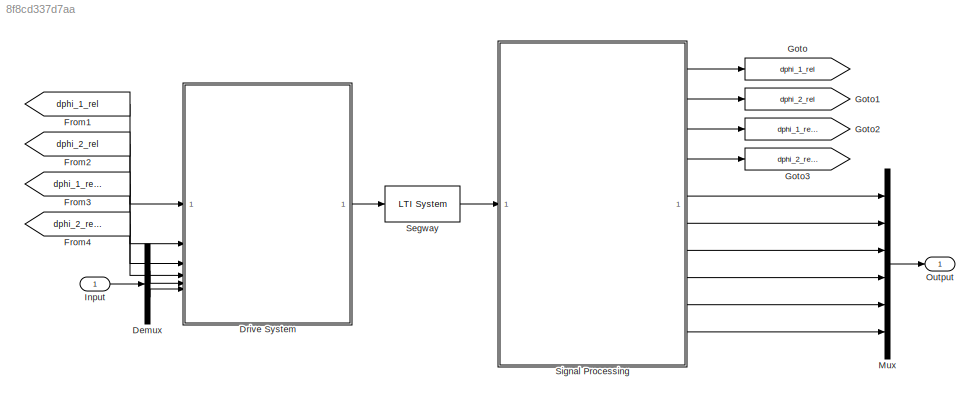
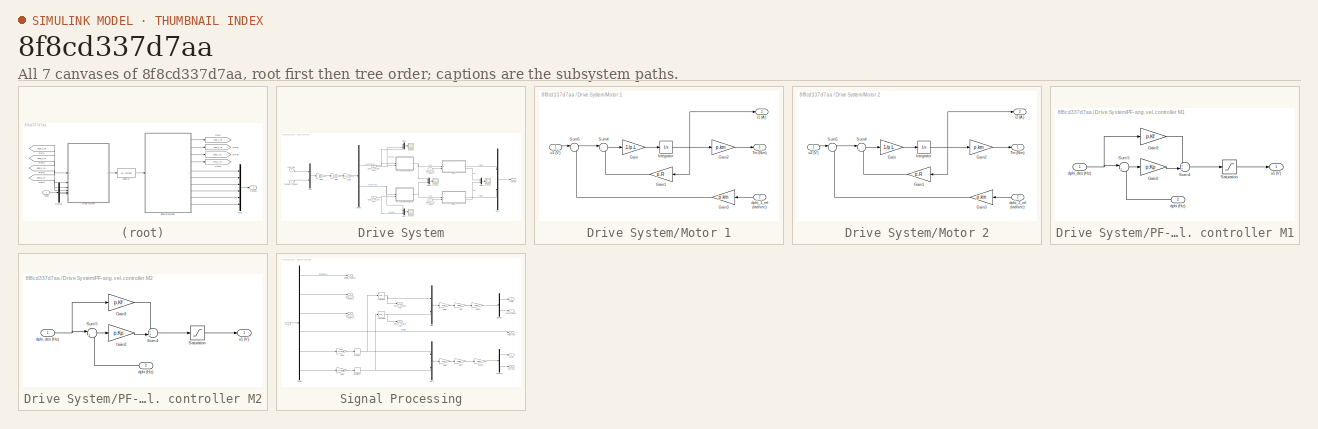
[diagram: thumbnail index - all 7 canvases of the model, root first then tree order]
MODEL slx_8f8cd337d7aa
KIND model
CONFIG AbsTol = auto
CONFIG EnableMultiTasking = off
CONFIG FixedStep = auto
CONFIG MaxStep = auto
CONFIG MinStep = auto
CONFIG RelTol = 1e-3
CONFIG SampleTimeConstraint = Unconstrained
CONFIG SolverName = VariableStepAuto
CONFIG StartTime = 0.0
CONFIG StopTime = 10.0
BLOCK [Demux] Demux
  Outputs = 2
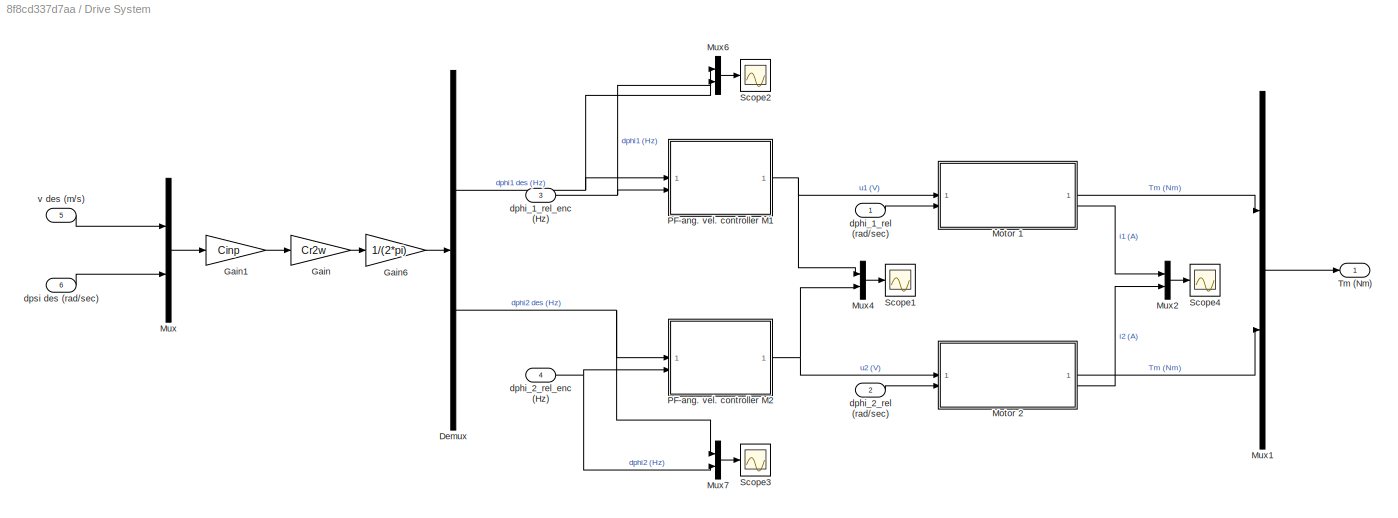
BLOCK [SubSystem] Drive System
BLOCK [Demux] Drive System/Demux
  Outputs = 2
BLOCK [Gain] Drive System/Gain
  Gain = Cr2w
  Multiplication = Matrix(K*u)
BLOCK [Gain] Drive System/Gain1
  Gain = Cinp
  Multiplication = Matrix(K*u)
BLOCK [Gain] Drive System/Gain6
  Gain = 1/(2*pi)
BLOCK [SubSystem] Drive System/Motor 1
BLOCK [Gain] Drive System/Motor 1/Gain
  Gain = 1/p.L
BLOCK [Gain] Drive System/Motor 1/Gain1
  Gain = p.R
  NameLocation = top
BLOCK [Gain] Drive System/Motor 1/Gain2
  Gain = p.km
BLOCK [Gain] Drive System/Motor 1/Gain3
  Gain = p.km
  NameLocation = top
BLOCK [Integrator] Drive System/Motor 1/Integrator
BLOCK [Sum] Drive System/Motor 1/Sum4
  Inputs = |+-
BLOCK [Sum] Drive System/Motor 1/Sum5
  Inputs = |+-
BLOCK [Outport] Drive System/Motor 1/Tm (Nm)
BLOCK [Inport] Drive System/Motor 1/dphi_1_rel (rad//sec)
  Port = 2
BLOCK [Outport] Drive System/Motor 1/i1 (A)
  Port = 2
BLOCK [Inport] Drive System/Motor 1/u1 (V)
BLOCK [SubSystem] Drive System/Motor 2
BLOCK [Gain] Drive System/Motor 2/Gain
  Gain = 1/p.L
BLOCK [Gain] Drive System/Motor 2/Gain1
  Gain = p.R
  NameLocation = top
BLOCK [Gain] Drive System/Motor 2/Gain2
  Gain = p.km
BLOCK [Gain] Drive System/Motor 2/Gain3
  Gain = p.km
  NameLocation = top
BLOCK [Integrator] Drive System/Motor 2/Integrator
BLOCK [Sum] Drive System/Motor 2/Sum4
  Inputs = |+-
BLOCK [Sum] Drive System/Motor 2/Sum5
  Inputs = |+-
BLOCK [Outport] Drive System/Motor 2/Tm (Nm)
BLOCK [Inport] Drive System/Motor 2/dphi_2_rel (rad//sec)
  Port = 2
BLOCK [Outport] Drive System/Motor 2/i2 (A)
  Port = 2
BLOCK [Inport] Drive System/Motor 2/u2 (V)
BLOCK [Mux] Drive System/Mux
  DisplayOption = bar
  Inputs = 2
BLOCK [Mux] Drive System/Mux1
  DisplayOption = bar
  Inputs = 2
BLOCK [Mux] Drive System/Mux2
  DisplayOption = bar
  Inputs = 2
BLOCK [Mux] Drive System/Mux4
  DisplayOption = bar
  Inputs = 2
BLOCK [Mux] Drive System/Mux6
  DisplayOption = bar
  Inputs = 2
BLOCK [Mux] Drive System/Mux7
  DisplayOption = bar
  Inputs = 2
BLOCK [SubSystem] Drive System/PF-ang. vel. controller M1
BLOCK [Gain] Drive System/PF-ang. vel. controller M1/Gain2
  Gain = p.Kp
BLOCK [Gain] Drive System/PF-ang. vel. controller M1/Gain3
  Gain = p.Kf
BLOCK [Saturate] Drive System/PF-ang. vel. controller M1/Saturation
  LowerLimit = p.u_min
  UpperLimit = p.u_max
BLOCK [Sum] Drive System/PF-ang. vel. controller M1/Sum4
  Inputs = ++|
BLOCK [Sum] Drive System/PF-ang. vel. controller M1/Sum5
  Inputs = |+-
BLOCK [Inport] Drive System/PF-ang. vel. controller M1/dphi (Hz)
  Port = 2
BLOCK [Inport] Drive System/PF-ang. vel. controller M1/dphi_des (Hz)
BLOCK [Outport] Drive System/PF-ang. vel. controller M1/u1 (V)
BLOCK [SubSystem] Drive System/PF-ang. vel. controller M2
BLOCK [Gain] Drive System/PF-ang. vel. controller M2/Gain2
  Gain = p.Kp
BLOCK [Gain] Drive System/PF-ang. vel. controller M2/Gain3
  Gain = p.Kf
BLOCK [Saturate] Drive System/PF-ang. vel. controller M2/Saturation
  LowerLimit = p.u_min
  UpperLimit = p.u_max
BLOCK [Sum] Drive System/PF-ang. vel. controller M2/Sum4
  Inputs = ++|
BLOCK [Sum] Drive System/PF-ang. vel. controller M2/Sum5
  Inputs = |+-
BLOCK [Inport] Drive System/PF-ang. vel. controller M2/dphi (Hz)
  Port = 2
BLOCK [Inport] Drive System/PF-ang. vel. controller M2/dphi_des (Hz)
BLOCK [Outport] Drive System/PF-ang. vel. controller M2/u1 (V)
BLOCK [Scope] Drive System/Scope1
  Floating = off
  NumInputPorts = 1
  ScopeSpecificationString = Simulink.scopes.TimeScopeBlockCfg('CurrentConfiguration', extmgr.ConfigurationSet(extmgr.Configuration('Core','General UI',true),extmgr.Configuration('Core','Source UI',true),extmgr.Configuration('Sources','WiredSimulink',true,'DataLoggingVariableName','ScopeData1'),extmgr.Configuration('Visuals','Time Domain',true,'SerializedDisplays',{struct('MinYLimReal','-10.00000','MaxYLimReal','10.00000','YL...<+1438ch>
BLOCK [Scope] Drive System/Scope2
  Floating = off
  NumInputPorts = 1
  ScopeSpecificationString = Simulink.scopes.TimeScopeBlockCfg('CurrentConfiguration', extmgr.ConfigurationSet(extmgr.Configuration('Core','General UI',true),extmgr.Configuration('Core','Source UI',true),extmgr.Configuration('Sources','WiredSimulink',true,'DataLoggingVariableName','ScopeData2'),extmgr.Configuration('Visuals','Time Domain',true,'SerializedDisplays',{struct('MinYLimReal','-0.41231','MaxYLimReal','1.15693','YLab...<+1434ch>
BLOCK [Scope] Drive System/Scope3
  Floating = off
  NumInputPorts = 1
  ScopeSpecificationString = Simulink.scopes.TimeScopeBlockCfg('CurrentConfiguration', extmgr.ConfigurationSet(extmgr.Configuration('Core','General UI',true),extmgr.Configuration('Core','Source UI',true),extmgr.Configuration('Sources','WiredSimulink',true,'DataLoggingVariableName','ScopeData3'),extmgr.Configuration('Visuals','Time Domain',true,'SerializedDisplays',{struct('MinYLimReal','-0.41232','MaxYLimReal','1.15692','YLab...<+1434ch>
BLOCK [Scope] Drive System/Scope4
  Floating = off
  NumInputPorts = 1
  ScopeSpecificationString = Simulink.scopes.TimeScopeBlockCfg('CurrentConfiguration', extmgr.ConfigurationSet(extmgr.Configuration('Core','General UI',true),extmgr.Configuration('Core','Source UI',true),extmgr.Configuration('Sources','WiredSimulink',true,'DataLoggingVariableName','ScopeData1'),extmgr.Configuration('Visuals','Time Domain',true,'SerializedDisplays',{struct('MinYLimReal','-11.7007','MaxYLimReal','43.5094','YLab...<+1422ch>
BLOCK [Outport] Drive System/Tm (Nm)
BLOCK [Inport] Drive System/dphi_1_rel (rad//sec)
BLOCK [Inport] Drive System/dphi_1_rel_enc (Hz)
  Port = 3
BLOCK [Inport] Drive System/dphi_2_rel (rad//sec)
  Port = 2
BLOCK [Inport] Drive System/dphi_2_rel_enc (Hz)
  Port = 4
BLOCK [Inport] Drive System/dpsi des (rad//sec)
  Port = 6
BLOCK [Inport] Drive System/v des (m//s)
  Port = 5
BLOCK [From] From1
  GotoTag = dphi_1_rel
BLOCK [From] From2
  GotoTag = dphi_2_rel
BLOCK [From] From3
  GotoTag = dphi_1_rel_enc
BLOCK [From] From4
  GotoTag = dphi_2_rel_enc
BLOCK [Goto] Goto
  GotoTag = dphi_1_rel
BLOCK [Goto] Goto1
  GotoTag = dphi_2_rel
BLOCK [Goto] Goto2
  GotoTag = dphi_1_rel_enc
BLOCK [Goto] Goto3
  GotoTag = dphi_2_rel_enc
BLOCK [Inport] Input
BLOCK [Mux] Mux
  DisplayOption = bar
  Inputs = 6
BLOCK [Outport] Output
BLOCK [Reference] Segway  REF=cstblocks/LTI System
  SourceBlock = cstblocks/LTI System
  SourceType = LTI Block
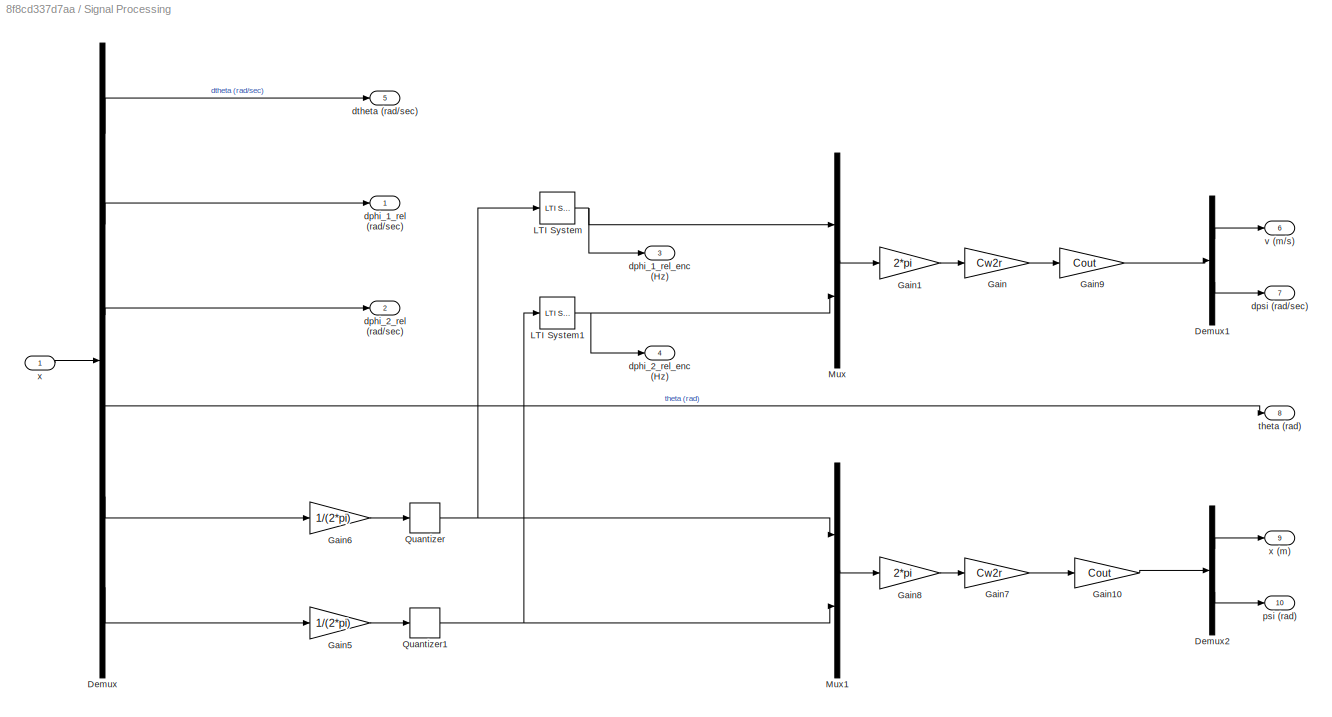
BLOCK [SubSystem] Signal Processing
BLOCK [Demux] Signal Processing/Demux
  Outputs = 6
BLOCK [Demux] Signal Processing/Demux1
  Outputs = 2
BLOCK [Demux] Signal Processing/Demux2
  Outputs = 2
BLOCK [Gain] Signal Processing/Gain
  Gain = Cw2r
  Multiplication = Matrix(K*u)
BLOCK [Gain] Signal Processing/Gain1
  Gain = 2*pi
BLOCK [Gain] Signal Processing/Gain10
  Gain = Cout
  Multiplication = Matrix(K*u)
BLOCK [Gain] Signal Processing/Gain5
  Gain = 1/(2*pi)
BLOCK [Gain] Signal Processing/Gain6
  Gain = 1/(2*pi)
BLOCK [Gain] Signal Processing/Gain7
  Gain = Cw2r
  Multiplication = Matrix(K*u)
BLOCK [Gain] Signal Processing/Gain8
  Gain = 2*pi
BLOCK [Gain] Signal Processing/Gain9
  Gain = Cout
  Multiplication = Matrix(K*u)
BLOCK [Reference] Signal Processing/LTI System  REF=cstblocks/LTI System
  SourceBlock = cstblocks/LTI System
  SourceType = LTI Block
BLOCK [Reference] Signal Processing/LTI System1  REF=cstblocks/LTI System
  SourceBlock = cstblocks/LTI System
  SourceType = LTI Block
BLOCK [Mux] Signal Processing/Mux
  DisplayOption = bar
  Inputs = 2
BLOCK [Mux] Signal Processing/Mux1
  DisplayOption = bar
  Inputs = 2
BLOCK [Quantizer] Signal Processing/Quantizer
  QuantizationInterval = 1/p.CPR
BLOCK [Quantizer] Signal Processing/Quantizer1
  QuantizationInterval = 1/p.CPR
BLOCK [Outport] Signal Processing/dphi_1_rel (rad//sec)
BLOCK [Outport] Signal Processing/dphi_1_rel_enc (Hz)
  Port = 3
BLOCK [Outport] Signal Processing/dphi_2_rel (rad//sec)
  Port = 2
BLOCK [Outport] Signal Processing/dphi_2_rel_enc (Hz)
  Port = 4
BLOCK [Outport] Signal Processing/dpsi (rad//sec)
  Port = 7
BLOCK [Outport] Signal Processing/dtheta (rad//sec)
  Port = 5
BLOCK [Outport] Signal Processing/psi (rad)
  Port = 10
BLOCK [Outport] Signal Processing/theta (rad) 
  Port = 8
BLOCK [Outport] Signal Processing/v (m//s)
  Port = 6
BLOCK [Inport] Signal Processing/x
BLOCK [Outport] Signal Processing/x (m)
  Port = 9
LINE Demux:1 -> Drive System:5
LINE Demux:2 -> Drive System:6
NET Drive System/Demux:1 -> Drive System/Mux6:1, Drive System/PF-ang. vel. controller M1:1
NET Drive System/Demux:2 -> Drive System/Mux7:1, Drive System/PF-ang. vel. controller M2:1
LINE Drive System/Gain1:1 -> Drive System/Gain:1
LINE Drive System/Gain6:1 -> Drive System/Demux:1
LINE Drive System/Gain:1 -> Drive System/Gain6:1
LINE Drive System/Motor 1/Gain1:1 -> Drive System/Motor 1/Sum4:2
LINE Drive System/Motor 1/Gain2:1 -> Drive System/Motor 1/Tm (Nm):1
LINE Drive System/Motor 1/Gain3:1 -> Drive System/Motor 1/Sum5:2
LINE Drive System/Motor 1/Gain:1 -> Drive System/Motor 1/Integrator:1
NET Drive System/Motor 1/Integrator:1 -> Drive System/Motor 1/Gain1:1, Drive System/Motor 1/Gain2:1, Drive System/Motor 1/i1 (A):1
LINE Drive System/Motor 1/Sum4:1 -> Drive System/Motor 1/Gain:1
LINE Drive System/Motor 1/Sum5:1 -> Drive System/Motor 1/Sum4:1
LINE Drive System/Motor 1/dphi_1_rel (rad//sec):1 -> Drive System/Motor 1/Gain3:1
LINE Drive System/Motor 1/u1 (V):1 -> Drive System/Motor 1/Sum5:1
LINE Drive System/Motor 1:1 -> Drive System/Mux1:1
LINE Drive System/Motor 1:2 -> Drive System/Mux2:1
LINE Drive System/Motor 2/Gain1:1 -> Drive System/Motor 2/Sum4:2
LINE Drive System/Motor 2/Gain2:1 -> Drive System/Motor 2/Tm (Nm):1
LINE Drive System/Motor 2/Gain3:1 -> Drive System/Motor 2/Sum5:2
LINE Drive System/Motor 2/Gain:1 -> Drive System/Motor 2/Integrator:1
NET Drive System/Motor 2/Integrator:1 -> Drive System/Motor 2/Gain1:1, Drive System/Motor 2/Gain2:1, Drive System/Motor 2/i2 (A):1
LINE Drive System/Motor 2/Sum4:1 -> Drive System/Motor 2/Gain:1
LINE Drive System/Motor 2/Sum5:1 -> Drive System/Motor 2/Sum4:1
LINE Drive System/Motor 2/dphi_2_rel (rad//sec):1 -> Drive System/Motor 2/Gain3:1
LINE Drive System/Motor 2/u2 (V):1 -> Drive System/Motor 2/Sum5:1
LINE Drive System/Motor 2:1 -> Drive System/Mux1:2
LINE Drive System/Motor 2:2 -> Drive System/Mux2:2
LINE Drive System/Mux1:1 -> Drive System/Tm (Nm):1
LINE Drive System/Mux2:1 -> Drive System/Scope4:1
LINE Drive System/Mux4:1 -> Drive System/Scope1:1
LINE Drive System/Mux6:1 -> Drive System/Scope2:1
LINE Drive System/Mux7:1 -> Drive System/Scope3:1
LINE Drive System/Mux:1 -> Drive System/Gain1:1
LINE Drive System/PF-ang. vel. controller M1/Gain2:1 -> Drive System/PF-ang. vel. controller M1/Sum4:2
LINE Drive System/PF-ang. vel. controller M1/Gain3:1 -> Drive System/PF-ang. vel. controller M1/Sum4:1
LINE Drive System/PF-ang. vel. controller M1/Saturation:1 -> Drive System/PF-ang. vel. controller M1/u1 (V):1
LINE Drive System/PF-ang. vel. controller M1/Sum4:1 -> Drive System/PF-ang. vel. controller M1/Saturation:1
LINE Drive System/PF-ang. vel. controller M1/Sum5:1 -> Drive System/PF-ang. vel. controller M1/Gain2:1
LINE Drive System/PF-ang. vel. controller M1/dphi (Hz):1 -> Drive System/PF-ang. vel. controller M1/Sum5:2
NET Drive System/PF-ang. vel. controller M1/dphi_des (Hz):1 -> Drive System/PF-ang. vel. controller M1/Gain3:1, Drive System/PF-ang. vel. controller M1/Sum5:1
NET Drive System/PF-ang. vel. controller M1:1 -> Drive System/Motor 1:1, Drive System/Mux4:1
LINE Drive System/PF-ang. vel. controller M2/Gain2:1 -> Drive System/PF-ang. vel. controller M2/Sum4:2
LINE Drive System/PF-ang. vel. controller M2/Gain3:1 -> Drive System/PF-ang. vel. controller M2/Sum4:1
LINE Drive System/PF-ang. vel. controller M2/Saturation:1 -> Drive System/PF-ang. vel. controller M2/u1 (V):1
LINE Drive System/PF-ang. vel. controller M2/Sum4:1 -> Drive System/PF-ang. vel. controller M2/Saturation:1
LINE Drive System/PF-ang. vel. controller M2/Sum5:1 -> Drive System/PF-ang. vel. controller M2/Gain2:1
LINE Drive System/PF-ang. vel. controller M2/dphi (Hz):1 -> Drive System/PF-ang. vel. controller M2/Sum5:2
NET Drive System/PF-ang. vel. controller M2/dphi_des (Hz):1 -> Drive System/PF-ang. vel. controller M2/Gain3:1, Drive System/PF-ang. vel. controller M2/Sum5:1
NET Drive System/PF-ang. vel. controller M2:1 -> Drive System/Motor 2:1, Drive System/Mux4:2
LINE Drive System/dphi_1_rel (rad//sec):1 -> Drive System/Motor 1:2
NET Drive System/dphi_1_rel_enc (Hz):1 -> Drive System/Mux6:2, Drive System/PF-ang. vel. controller M1:2
LINE Drive System/dphi_2_rel (rad//sec):1 -> Drive System/Motor 2:2
NET Drive System/dphi_2_rel_enc (Hz):1 -> Drive System/Mux7:2, Drive System/PF-ang. vel. controller M2:2
LINE Drive System/dpsi des (rad//sec):1 -> Drive System/Mux:2
LINE Drive System/v des (m//s):1 -> Drive System/Mux:1
LINE Drive System:1 -> Segway:1
LINE From1:1 -> Drive System:1
LINE From2:1 -> Drive System:2
LINE From3:1 -> Drive System:3
LINE From4:1 -> Drive System:4
LINE Input:1 -> Demux:1
LINE Mux:1 -> Output:1
LINE Segway:1 -> Signal Processing:1
LINE Signal Processing/Demux1:1 -> Signal Processing/v (m//s):1
LINE Signal Processing/Demux1:2 -> Signal Processing/dpsi (rad//sec):1
LINE Signal Processing/Demux2:1 -> Signal Processing/x (m):1
LINE Signal Processing/Demux2:2 -> Signal Processing/psi (rad):1
LINE Signal Processing/Demux:1 -> Signal Processing/dtheta (rad//sec):1
LINE Signal Processing/Demux:2 -> Signal Processing/dphi_1_rel (rad//sec):1
LINE Signal Processing/Demux:3 -> Signal Processing/dphi_2_rel (rad//sec):1
LINE Signal Processing/Demux:4 -> Signal Processing/theta (rad) :1
LINE Signal Processing/Demux:5 -> Signal Processing/Gain6:1
LINE Signal Processing/Demux:6 -> Signal Processing/Gain5:1
LINE Signal Processing/Gain10:1 -> Signal Processing/Demux2:1
LINE Signal Processing/Gain1:1 -> Signal Processing/Gain:1
LINE Signal Processing/Gain5:1 -> Signal Processing/Quantizer1:1
LINE Signal Processing/Gain6:1 -> Signal Processing/Quantizer:1
LINE Signal Processing/Gain7:1 -> Signal Processing/Gain10:1
LINE Signal Processing/Gain8:1 -> Signal Processing/Gain7:1
LINE Signal Processing/Gain9:1 -> Signal Processing/Demux1:1
LINE Signal Processing/Gain:1 -> Signal Processing/Gain9:1
NET Signal Processing/LTI System1:1 -> Signal Processing/Mux:2, Signal Processing/dphi_2_rel_enc (Hz):1
NET Signal Processing/LTI System:1 -> Signal Processing/Mux:1, Signal Processing/dphi_1_rel_enc (Hz):1
LINE Signal Processing/Mux1:1 -> Signal Processing/Gain8:1
LINE Signal Processing/Mux:1 -> Signal Processing/Gain1:1
NET Signal Processing/Quantizer1:1 -> Signal Processing/LTI System1:1, Signal Processing/Mux1:2
NET Signal Processing/Quantizer:1 -> Signal Processing/LTI System:1, Signal Processing/Mux1:1
LINE Signal Processing/x:1 -> Signal Processing/Demux:1
LINE Signal Processing:1 -> Goto:1
LINE Signal Processing:10 -> Mux:6
LINE Signal Processing:2 -> Goto1:1
LINE Signal Processing:3 -> Goto2:1
LINE Signal Processing:4 -> Goto3:1
LINE Signal Processing:5 -> Mux:1
LINE Signal Processing:6 -> Mux:2
LINE Signal Processing:7 -> Mux:3
LINE Signal Processing:8 -> Mux:4
LINE Signal Processing:9 -> Mux:5
note: NET lines group one-source signal fan-out (src -> all destinations, sorted); 1:1 wires keep LINE
